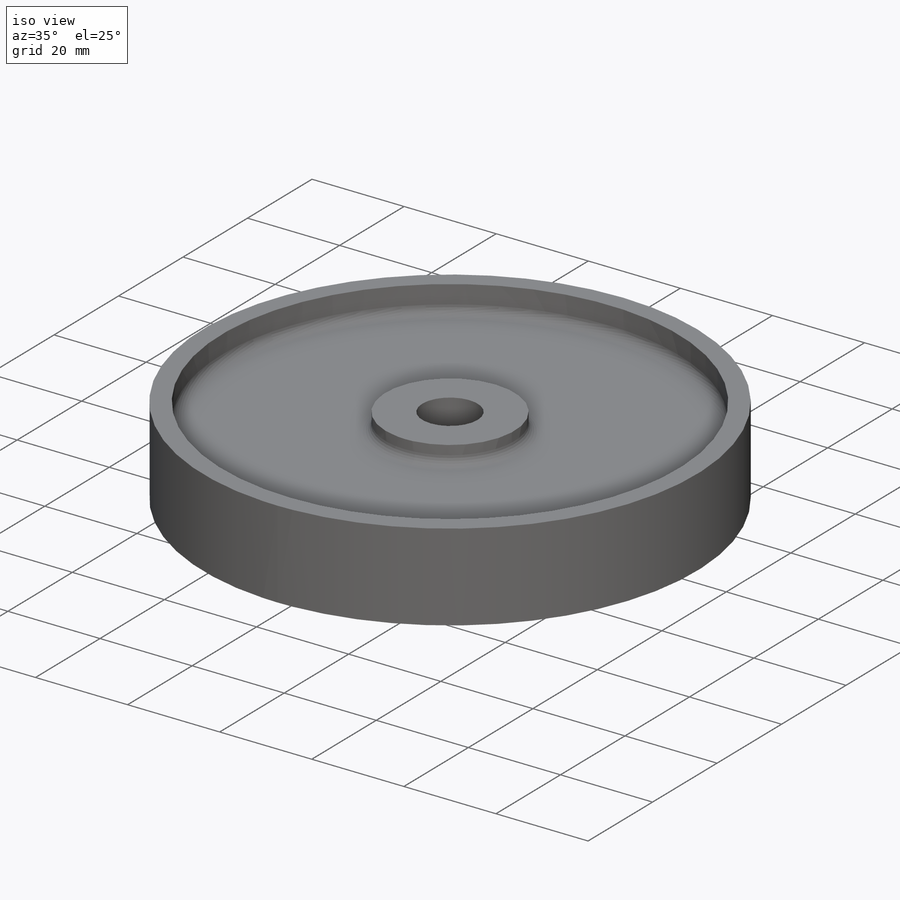
[diagram: iso view]
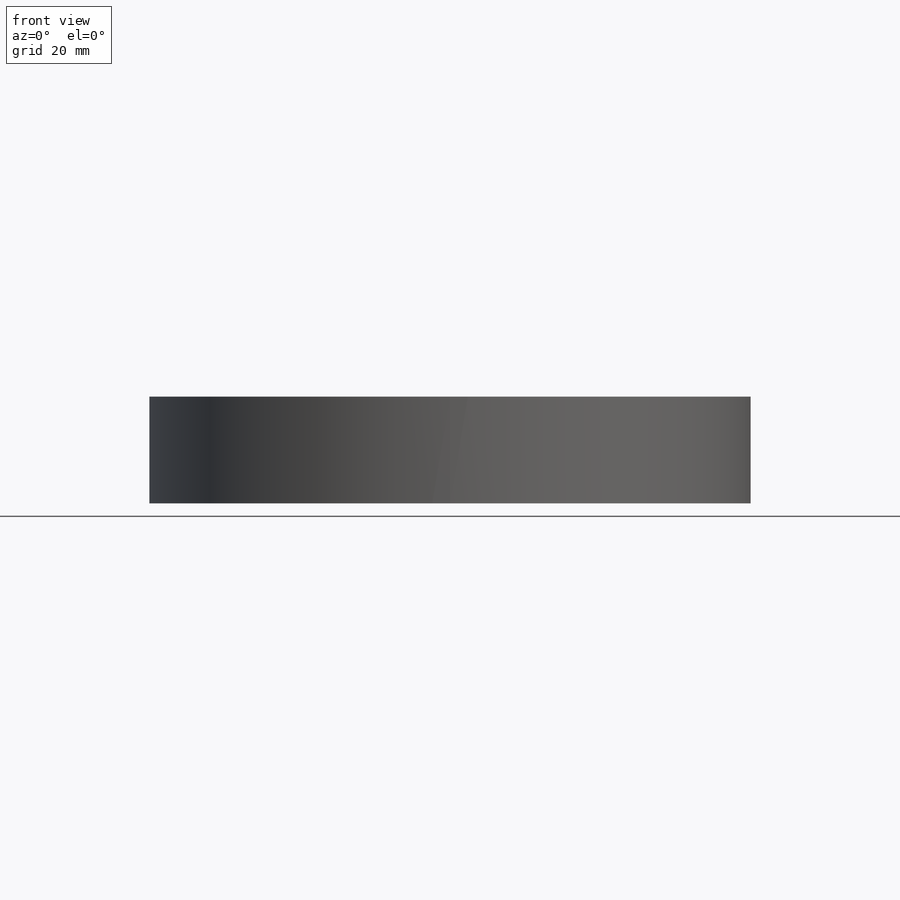
[diagram: front view]
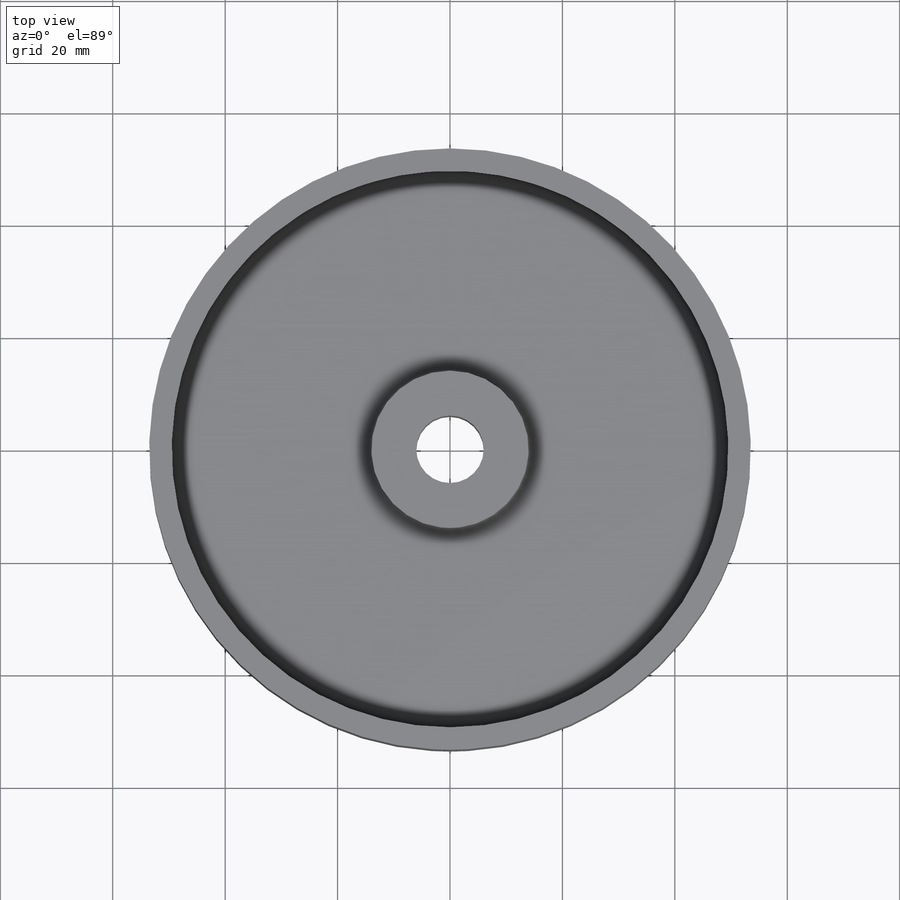
[diagram: top view]
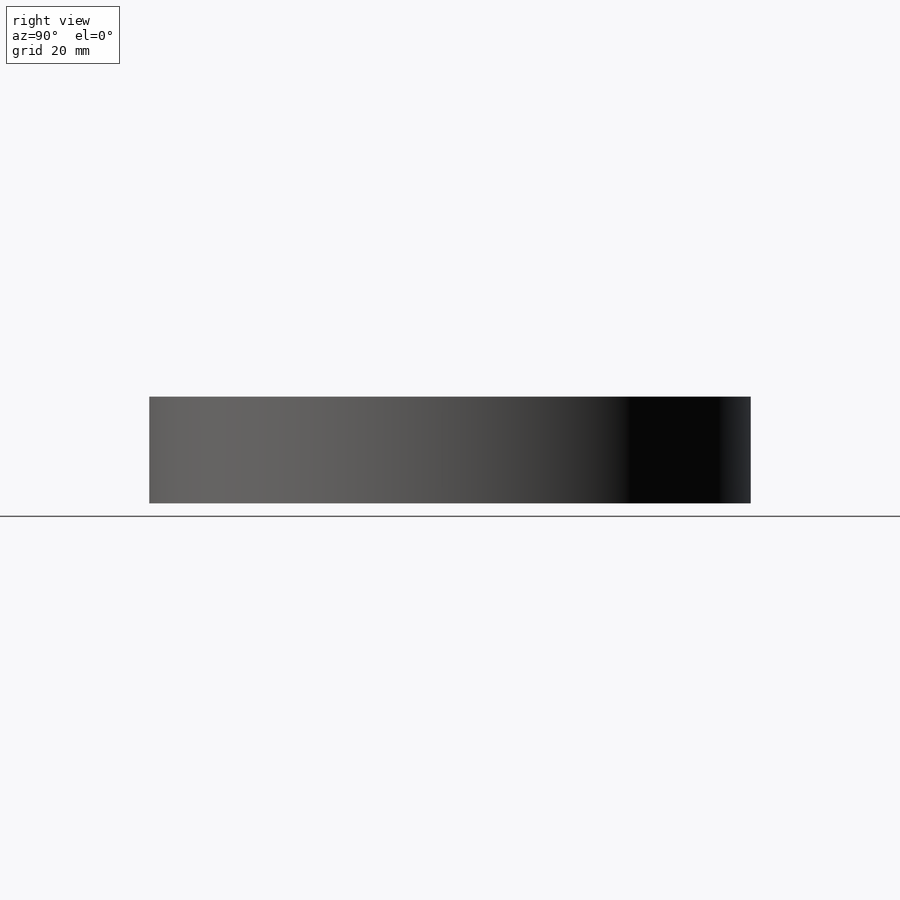
[diagram: right view]
SOLIDWORKS PART (.sldprt)
format: sldprt  version: not decoded by parser v0  size: 222,208 bytes
history: native  units: mm
features: sketch x4, extrude x2, cut_extrude x2, fillet x2, material x1, plane x1, mirror x1 (+13 scaffold rows collapsed)
feature tree (26):
  scaffold x13  (default folders/planes/origin — collapsed)
  material  "Material <not specified>"
  sketch  "Sketch1"  dims[D1=107.0mm]
  extrude  "Boss-Extrude1"  Depth=19mm
  sketch  "Sketch2"  dims[D1=4.0mm]
  cut_extrude  "Cut-Extrude1"  Depth=6mm
  fillet  "Fillet1"  Radius=2mm
  sketch  "Sketch3"  dims[D1=28.0mm]
  extrude  "Boss-Extrude2"  Depth=4mm
  fillet  "Fillet2"  Radius=2mm
  plane  "Plane1"  Offset=9.5mm
  mirror  "Mirror1"
  sketch  "Sketch5"  dims[D1=12.0mm]
  cut_extrude  "Cut-Extrude2"  [1 undecoded]
decode coverage: 9 of 11 modeling features carry decoded parameters
note: 1 parameter value undecoded
note: suppression state not decoded; provenance and decode notes live in map.json
